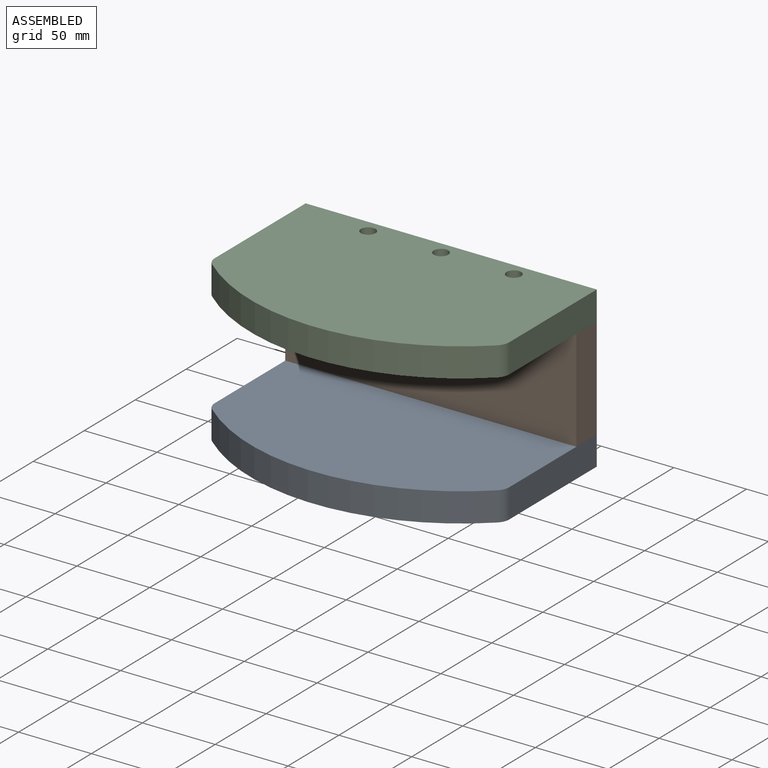
[diagram: assembled view]
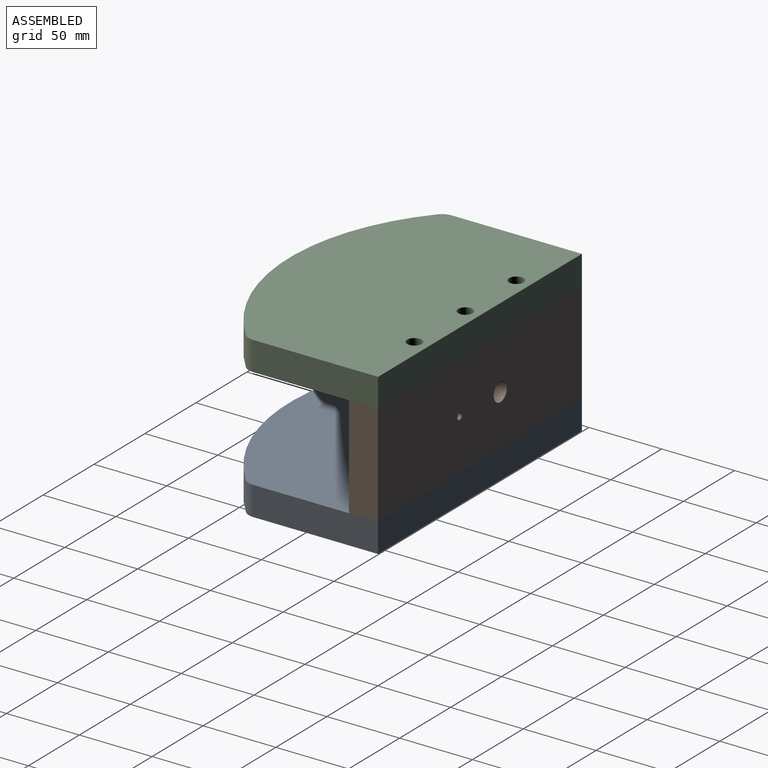
[diagram: assembled view, second angle]
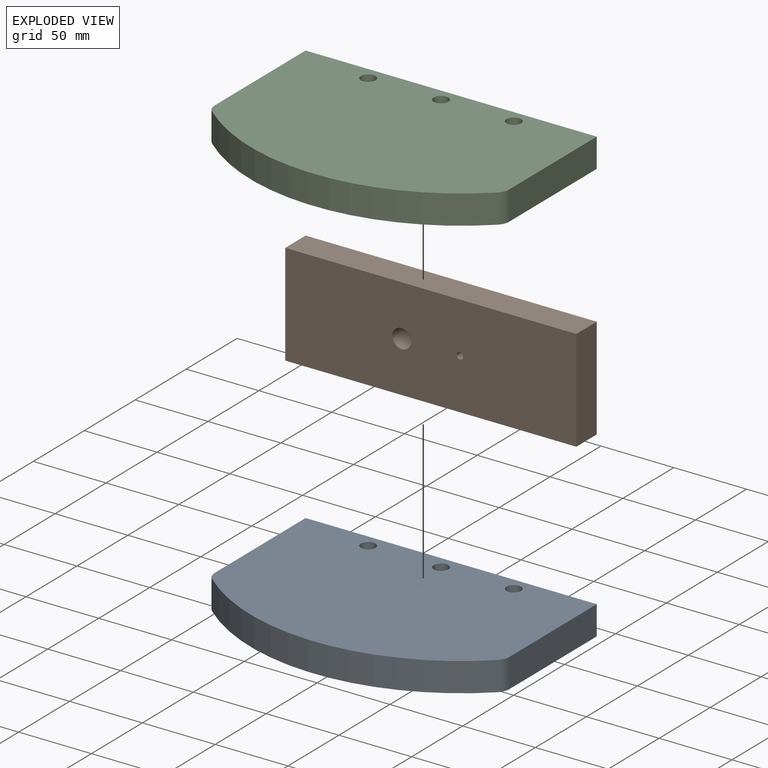
[diagram: exploded view]
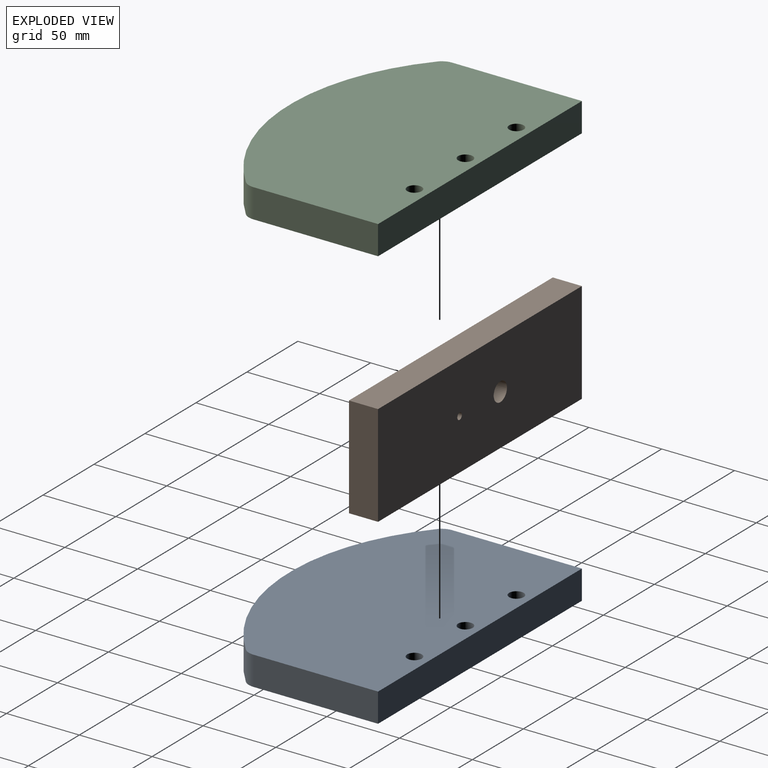
[diagram: exploded view, second angle]
ASSEMBLY  parts=3 mates=2
PART A: 11 faces, bbox 200x131.9x20 mm
  f0: plane 85.74x20mm, normal (1,0,0), area 1714.9mm2, adj f1,f7,f9,f10
  f1: plane 200x20mm, normal (0,1,0), area 4000mm2, adj f0,f2,f9,f10
  f2: plane 89.17x20mm, normal (-1,0,0), area 1783.4mm2, adj f1,f3,f9,f10
  f3: cylinder r=10mm len=20mm, axis (0,0,-1), area 171.7mm2, adj f2,f4,f9,f10
  f4: cylinder r=144.78mm len=193.36mm, axis (0,0,-1), area 4235.4mm2, adj f3,f7,f9,f10
  f5: cylinder r=5mm len=20mm, axis (0,0,-1), area 628.3mm2, adj f9,f10
  f6: cylinder r=5mm len=20mm, axis (0,0,-1), area 628.3mm2, adj f9,f10
  f7: cylinder r=10mm len=20mm, axis (0,0,-1), area 164.1mm2, adj f0,f4,f9,f10
  f8: cylinder r=5mm len=20mm, axis (0,0,-1), area 628.3mm2, adj f9,f10
  f9: plane 200x131.94mm, normal (0,0,1), area 23640mm2, adj f0,f1,f2,f3,f4,f5,f6,f7
  f10: plane 200x131.94mm, normal (0,0,-1), area 23640mm2, adj f0,f1,f2,f3,f4,f5,f6,f7
PART B: 8 faces, bbox 200x20x70 mm
  f0: plane 200x20mm, normal (0,0,1), area 4000mm2, adj f1,f5,f6,f7
  f1: plane 70x20mm, normal (-1,0,0), area 1400mm2, adj f0,f2,f6,f7
  f2: plane 200x20mm, normal (0,0,-1), area 4000mm2, adj f1,f5,f6,f7
  f3: cylinder r=6.5mm len=20mm, axis (0,1,0), area 816.8mm2, adj f6,f7
  f4: cylinder r=2.25mm len=20mm, axis (0,1,0), area 282.7mm2, adj f6,f7
  f5: plane 70x20mm, normal (1,0,0), area 1400mm2, adj f0,f2,f6,f7
  f6: plane 200x70mm, normal (0,-1,0), area 13851.4mm2, adj f0,f1,f2,f3,f4,f5
  f7: plane 200x70mm, normal (0,1,0), area 13851.4mm2, adj f0,f1,f2,f3,f4,f5
PART C: same geometry as A
PLACE A rot(axis=(0,0,1),0deg) t=(-20.9,0.44,-37.9)mm
PLACE B rot(axis=(0,0,1),0deg) t=(-24.13,84.05,-3.64)mm
PLACE C rot(axis=(0,0,1),0deg) t=(-20.9,0.44,52.1)mm
MATE fastened A.f9 <-> B.f2  axis (0,0,1) through (-51.7,84.05,-17.9)mm
MATE fastened B.f0 <-> C.f10  axis (0,0,1) through (-51.7,84.05,52.1)mm
